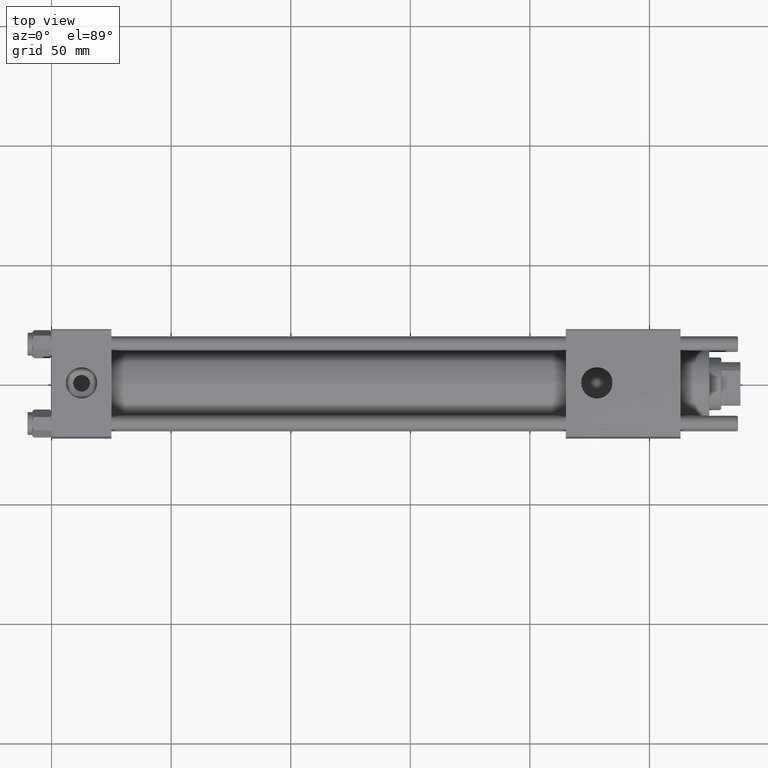
[diagram: clean part render]
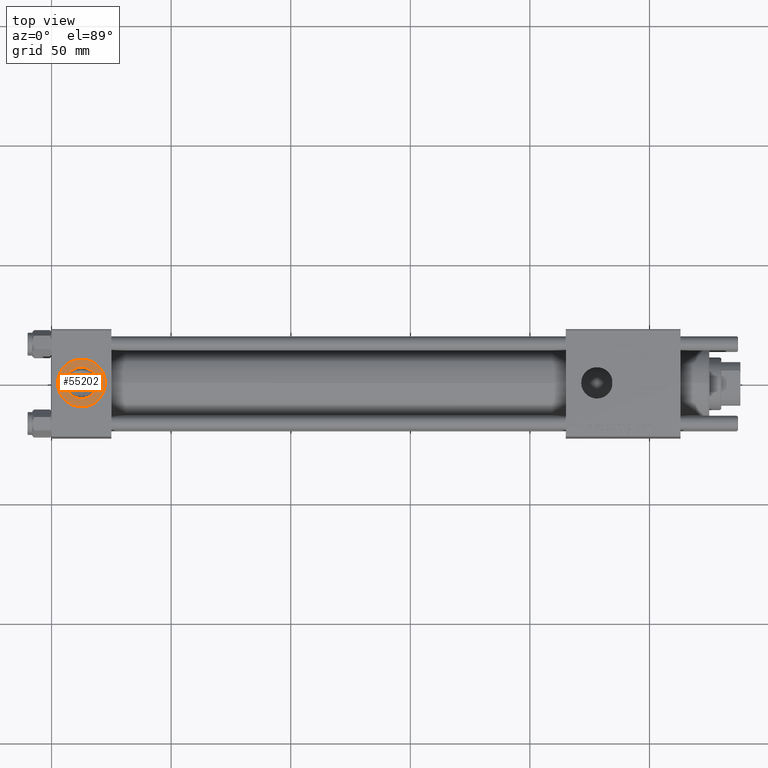
[diagram: same view with one face highlighted and labeled with its STEP entity id]
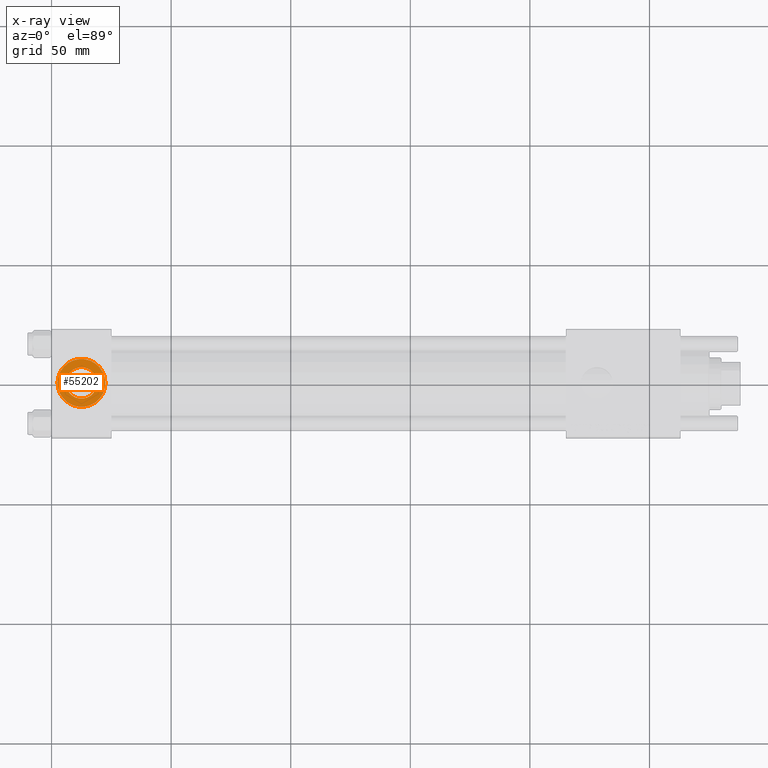
[diagram: x-ray of the same camera — body ghosted, the highlighted face saturated]
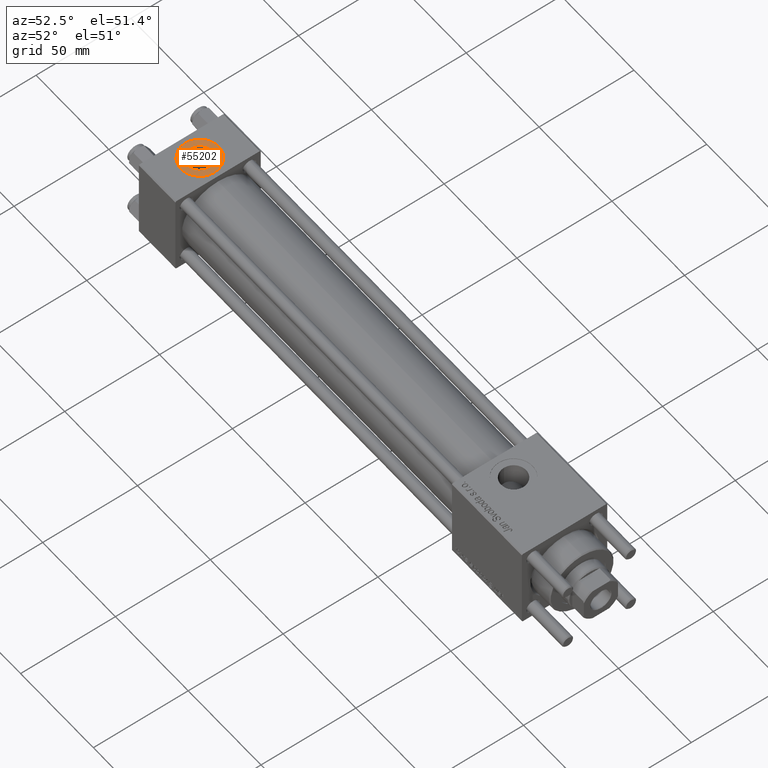
[diagram: same view with one face highlighted and labeled with its STEP entity id]
A machine part, top view. The second image highlights one B-rep face of the part: STEP entity #55202.
The next image is the same camera in x-ray: the body ghosted, the highlighted face saturated — about 0% of this face is hidden behind the body in this view.
A second angle (auxiliary view) of the same face is appended — the face is thin or edge-on in the first view.
In plain terms, the highlighted planar face has unit normal (0, 0, 1).
Its self-contained STEP definition (entity closure, byte-faithful):
#115 = AXIS2_PLACEMENT_3D ( 'NONE', #16657, #10765, #28945 ) ;
#2716 = CARTESIAN_POINT ( 'NONE',  ( 12.50000000000000000, -1.734723475976807094E-15, 22.30000000000000071 ) ) ;
#3289 = DIRECTION ( 'NONE',  ( 0.000000000000000000, 0.000000000000000000, 1.000000000000000000 ) ) ;
#3536 = CARTESIAN_POINT ( 'NONE',  ( 12.50000000000000000, -1.734723475976807094E-15, 22.30000000000000071 ) ) ;
#5812 = VERTEX_POINT ( 'NONE', #28662 ) ;
#6627 = CIRCLE ( 'NONE', #37991, 9.999999999999998224 ) ;
#10765 = DIRECTION ( 'NONE',  ( 0.000000000000000000, 0.000000000000000000, 1.000000000000000000 ) ) ;
#11992 = DIRECTION ( 'NONE',  ( 0.000000000000000000, 0.000000000000000000, 1.000000000000000000 ) ) ;
#13618 = AXIS2_PLACEMENT_3D ( 'NONE', #2716, #24197, #33714 ) ;
#16657 = CARTESIAN_POINT ( 'NONE',  ( 12.50000000000000000, -1.734723475976807094E-15, 22.30000000000000071 ) ) ;
#17021 = FACE_BOUND ( 'NONE', #36228, .T. ) ;
#18689 = VERTEX_POINT ( 'NONE', #42000 ) ;
#19103 = CIRCLE ( 'NONE', #115, 6.579999999999999183 ) ;
#19365 = VERTEX_POINT ( 'NONE', #54866 ) ;
#20139 = DIRECTION ( 'NONE',  ( 1.000000000000000000, 0.000000000000000000, 0.000000000000000000 ) ) ;
#22879 = EDGE_CURVE ( 'NONE', #18689, #19365, #25071, .T. ) ;
#23254 = EDGE_CURVE ( 'NONE', #26778, #5812, #36430, .T. ) ;
#23343 = ORIENTED_EDGE ( 'NONE', *, *, #22879, .T. ) ;
#24197 = DIRECTION ( 'NONE',  ( 0.000000000000000000, 0.000000000000000000, 1.000000000000000000 ) ) ;
#25071 = CIRCLE ( 'NONE', #54487, 9.999999999999998224 ) ;
#26670 = ORIENTED_EDGE ( 'NONE', *, *, #48961, .F. ) ;
#26778 = VERTEX_POINT ( 'NONE', #43451 ) ;
#28662 = CARTESIAN_POINT ( 'NONE',  ( 5.920000000000002593, -9.289058821378490386E-16, 22.30000000000000071 ) ) ;
#28707 = AXIS2_PLACEMENT_3D ( 'NONE', #43192, #3289, #48504 ) ;
#28945 = DIRECTION ( 'NONE',  ( 1.000000000000000000, 0.000000000000000000, 0.000000000000000000 ) ) ;
#30945 = DIRECTION ( 'NONE',  ( 0.000000000000000000, 0.000000000000000000, 1.000000000000000000 ) ) ;
#33714 = DIRECTION ( 'NONE',  ( 1.000000000000000000, 0.000000000000000000, 0.000000000000000000 ) ) ;
#33984 = FACE_OUTER_BOUND ( 'NONE', #58012, .T. ) ;
#36228 = EDGE_LOOP ( 'NONE', ( #39427, #26670 ) ) ;
#36430 = CIRCLE ( 'NONE', #13618, 6.579999999999999183 ) ;
#37991 = AXIS2_PLACEMENT_3D ( 'NONE', #42719, #11992, #20139 ) ;
#38279 = ORIENTED_EDGE ( 'NONE', *, *, #45243, .T. ) ;
#39427 = ORIENTED_EDGE ( 'NONE', *, *, #23254, .F. ) ;
#42000 = CARTESIAN_POINT ( 'NONE',  ( 2.500000000000003997, -5.100766768294543310E-16, 22.30000000000000071 ) ) ;
#42719 = CARTESIAN_POINT ( 'NONE',  ( 12.50000000000000000, -1.734723475976807094E-15, 22.30000000000000071 ) ) ;
#43192 = CARTESIAN_POINT ( 'NONE',  ( 12.50000000000000000, -1.734723475976807094E-15, 22.30000000000000071 ) ) ;
#43451 = CARTESIAN_POINT ( 'NONE',  ( 19.07999999999999829, -1.734723475976807094E-15, 22.30000000000000071 ) ) ;
#44015 = DIRECTION ( 'NONE',  ( 1.000000000000000000, 0.000000000000000000, 0.000000000000000000 ) ) ;
#45243 = EDGE_CURVE ( 'NONE', #19365, #18689, #6627, .T. ) ;
#48504 = DIRECTION ( 'NONE',  ( 1.000000000000000000, 0.000000000000000000, -0.000000000000000000 ) ) ;
#48961 = EDGE_CURVE ( 'NONE', #5812, #26778, #19103, .T. ) ;
#54487 = AXIS2_PLACEMENT_3D ( 'NONE', #3536, #30945, #44015 ) ;
#54866 = CARTESIAN_POINT ( 'NONE',  ( 22.50000000000000000, -1.734723475976807094E-15, 22.30000000000000071 ) ) ;
#55202 = ADVANCED_FACE ( 'NONE', ( #17021, #33984 ), #56838, .T. ) ;
#56838 = PLANE ( 'NONE',  #28707 ) ;
#58012 = EDGE_LOOP ( 'NONE', ( #38279, #23343 ) ) ;